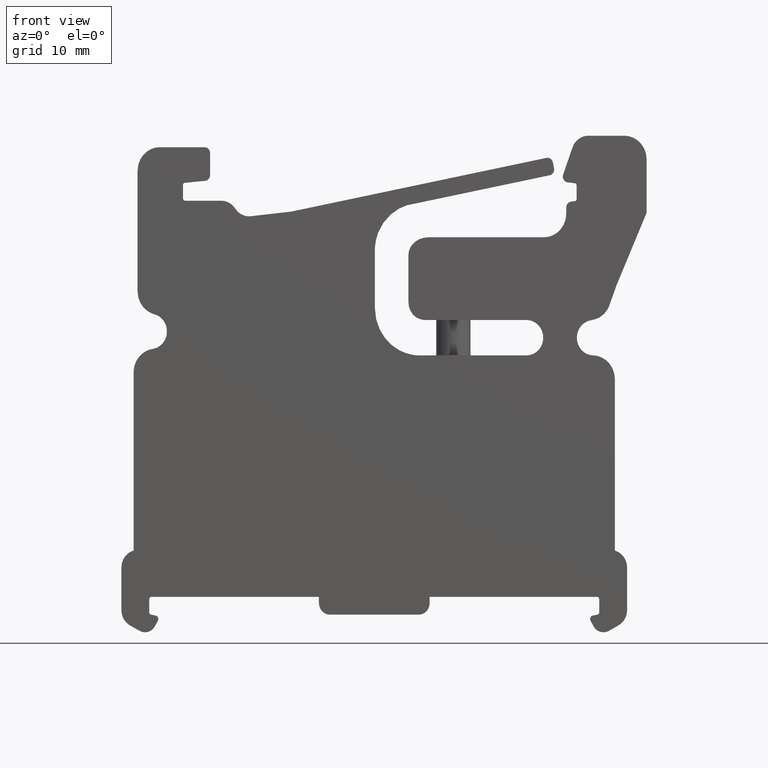
[diagram: clean part render]
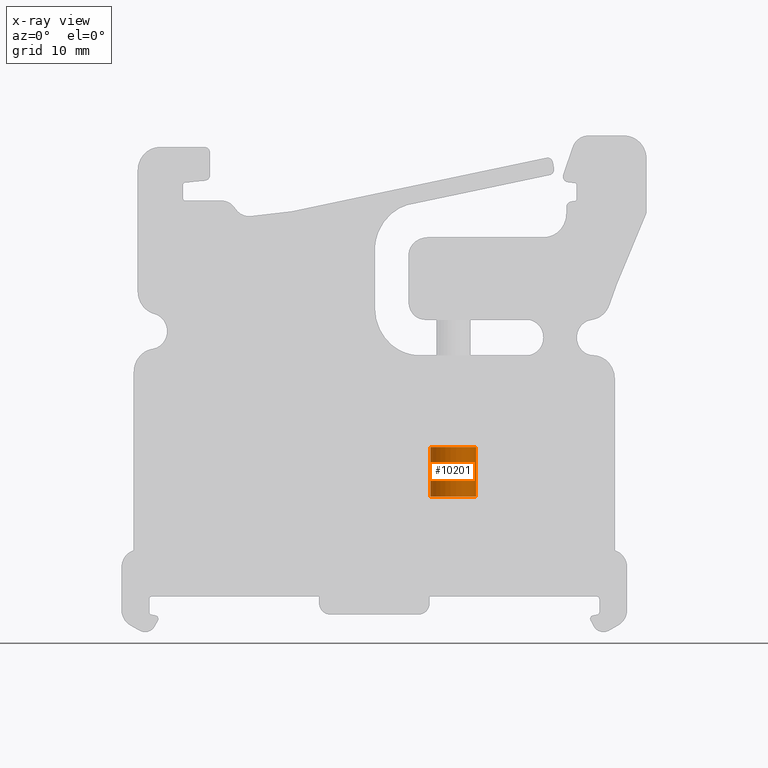
[diagram: x-ray — body ghosted, one internal face saturated and labeled with its STEP entity id]
A machine part, front view, then the same camera in x-ray: the body is ghosted and one INTERNAL B-rep face — a face not visible from any outside direction — is saturated and labeled: STEP entity #10201.
In plain terms, the highlighted cylindrical surface (edge-blend (fillet) strip) has radius 2 mm, axis along (-0, -0, -1).
Its self-contained STEP definition (entity closure, byte-faithful):
#2865 = CARTESIAN_POINT ( 'NONE',  ( 6.950559934355387000, -5.001244392011017200, 12.47156650772370900 ) ) ;
#2869 = CYLINDRICAL_SURFACE ( 'NONE', #8930, 2.000000000000000000 ) ;
#2871 = FACE_OUTER_BOUND ( 'NONE', #4451, .T. ) ;
#2874 = DIRECTION ( 'NONE',  ( -0.0000000000000000000, -0.0000000000000000000, -1.000000000000000000 ) ) ;
#2880 = DIRECTION ( 'NONE',  ( -1.000000000000000000, 0.0000000000000000000, 0.0000000000000000000 ) ) ;
#4451 = EDGE_LOOP ( 'NONE', ( #4536, #8232, #4532, #4539 ) ) ;
#4532 = ORIENTED_EDGE ( 'NONE', *, *, #10387, .F. ) ;
#4536 = ORIENTED_EDGE ( 'NONE', *, *, #10385, .F. ) ;
#4539 = ORIENTED_EDGE ( 'NONE', *, *, #10493, .F. ) ;
#6363 = VERTEX_POINT ( 'NONE', #9860 ) ;
#6364 = VERTEX_POINT ( 'NONE', #9869 ) ;
#6409 = VERTEX_POINT ( 'NONE', #9952 ) ;
#6426 = VERTEX_POINT ( 'NONE', #9946 ) ;
#8232 = ORIENTED_EDGE ( 'NONE', *, *, #10386, .T. ) ;
#8628 = VECTOR ( 'NONE', #10739, 1000.000000000000000 ) ;
#8930 = AXIS2_PLACEMENT_3D ( 'NONE', #2865, #2874, #2880 ) ;
#9057 = VECTOR ( 'NONE', #12095, 1000.000000000000000 ) ;
#9087 = CIRCLE ( 'NONE', #9089, 2.000000000000000000 ) ;
#9089 = AXIS2_PLACEMENT_3D ( 'NONE', #12107, #12090, #12082 ) ;
#9091 = CIRCLE ( 'NONE', #9092, 2.000000000000000000 ) ;
#9092 = AXIS2_PLACEMENT_3D ( 'NONE', #12093, #12094, #12097 ) ;
#9860 = CARTESIAN_POINT ( 'NONE',  ( 8.950559934355386100, -5.001244392011017200, 12.47156650772370900 ) ) ;
#9869 = CARTESIAN_POINT ( 'NONE',  ( 4.950559934355387000, -5.001244392011017200, 8.150096226688518200 ) ) ;
#9946 = CARTESIAN_POINT ( 'NONE',  ( 4.950559934355387000, -5.001244392011017200, 12.47156650772370900 ) ) ;
#9952 = CARTESIAN_POINT ( 'NONE',  ( 8.950559934355386100, -5.001244392011017200, 8.150096226688518200 ) ) ;
#10201 = ADVANCED_FACE ( 'NONE', ( #2871 ), #2869, .F. ) ;
#10385 = EDGE_CURVE ( 'NONE', #6363, #6426, #9087, .T. ) ;
#10386 = EDGE_CURVE ( 'NONE', #6363, #6409, #12089, .T. ) ;
#10387 = EDGE_CURVE ( 'NONE', #6364, #6409, #9091, .T. ) ;
#10493 = EDGE_CURVE ( 'NONE', #6426, #6364, #10738, .T. ) ;
#10715 = CARTESIAN_POINT ( 'NONE',  ( 4.950559934355387000, -5.001244392011017200, 12.47156650772370900 ) ) ;
#10738 = LINE ( 'NONE', #10715, #8628 ) ;
#10739 = DIRECTION ( 'NONE',  ( -0.0000000000000000000, -0.0000000000000000000, -1.000000000000000000 ) ) ;
#12082 = DIRECTION ( 'NONE',  ( -1.000000000000000000, 0.0000000000000000000, 0.0000000000000000000 ) ) ;
#12089 = LINE ( 'NONE', #12101, #9057 ) ;
#12090 = DIRECTION ( 'NONE',  ( -0.0000000000000000000, -0.0000000000000000000, -1.000000000000000000 ) ) ;
#12093 = CARTESIAN_POINT ( 'NONE',  ( 6.950559934355387000, -5.001244392011017200, 8.150096226688518200 ) ) ;
#12094 = DIRECTION ( 'NONE',  ( 0.0000000000000000000, 0.0000000000000000000, 1.000000000000000000 ) ) ;
#12095 = DIRECTION ( 'NONE',  ( -0.0000000000000000000, -0.0000000000000000000, -1.000000000000000000 ) ) ;
#12097 = DIRECTION ( 'NONE',  ( -1.000000000000000000, 0.0000000000000000000, 0.0000000000000000000 ) ) ;
#12101 = CARTESIAN_POINT ( 'NONE',  ( 8.950559934355386100, -5.001244392011017200, 12.47156650772370900 ) ) ;
#12107 = CARTESIAN_POINT ( 'NONE',  ( 6.950559934355387000, -5.001244392011017200, 12.47156650772370900 ) ) ;